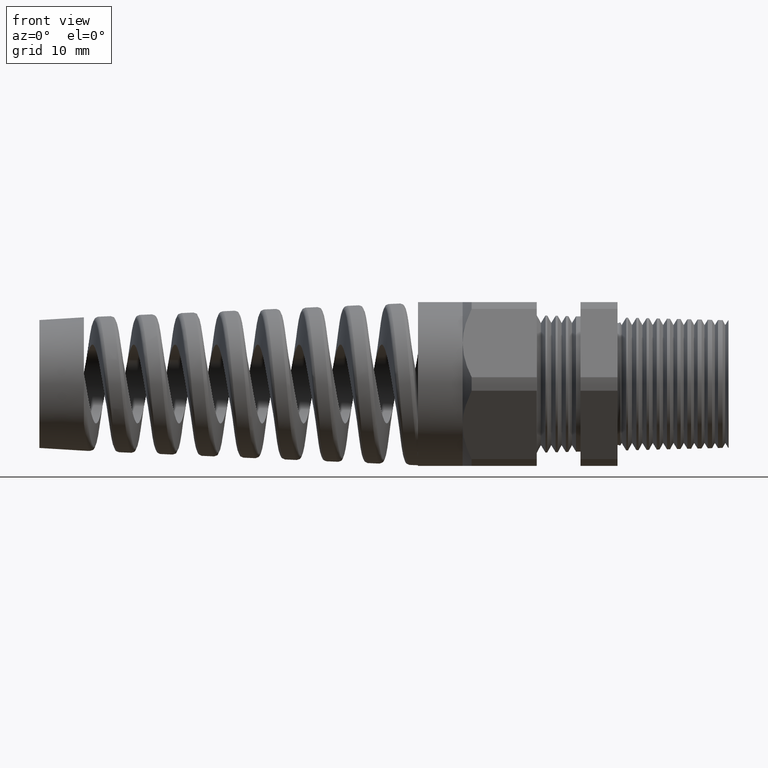
[diagram: clean part render]
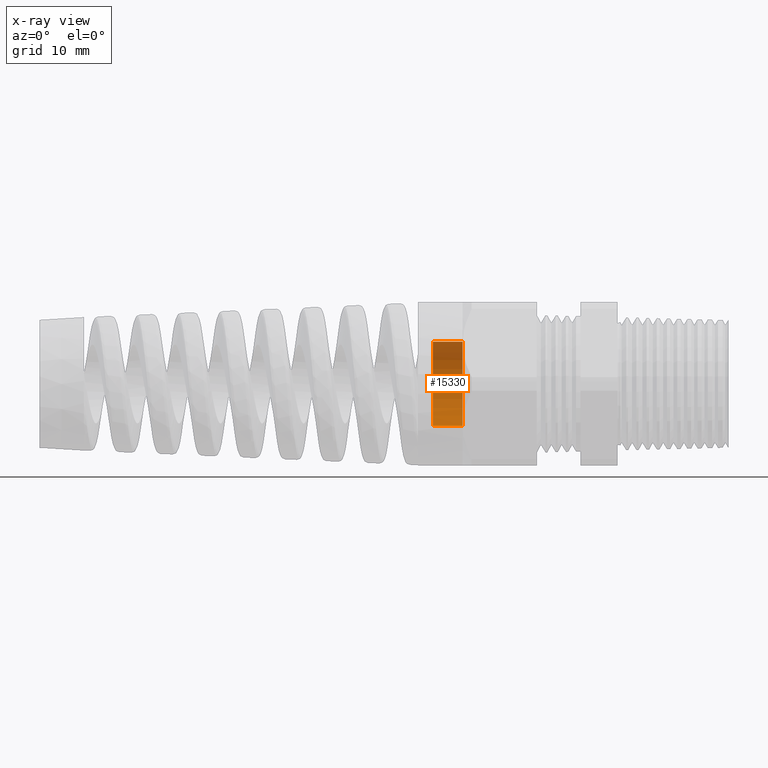
[diagram: x-ray — body ghosted, one internal face saturated and labeled with its STEP entity id]
A machine part, front view, then the same camera in x-ray: the body is ghosted and one INTERNAL B-rep face — a face not visible from any outside direction — is saturated and labeled: STEP entity #15330.
In plain terms, the highlighted cylindrical surface (partial cylindrical patch) has radius 5.69 mm, axis along (1, 0, 0).
Its self-contained STEP definition (entity closure, byte-faithful):
#2848 = CARTESIAN_POINT ( 'NONE',  ( -1.289999999999999800, 0.0000000000000000000, -0.2240167598134333900 ) ) ;
#2849 = DIRECTION ( 'NONE',  ( 1.000000000000000000, 0.0000000000000000000, 0.0000000000000000000 ) ) ;
#2850 = VECTOR ( 'NONE', #2849, 39.37007874015748100 ) ;
#2851 = CARTESIAN_POINT ( 'NONE',  ( -1.369721211586352600, 0.0000000000000000000, -0.2240167598134333900 ) ) ;
#2852 = LINE ( 'NONE', #2851, #2850 ) ;
#8094 = CARTESIAN_POINT ( 'NONE',  ( -1.132519685039370200, 2.743414078608826300E-017, 0.2240167598134333900 ) ) ;
#8095 = DIRECTION ( 'NONE',  ( 1.000000000000000000, 0.0000000000000000000, 0.0000000000000000000 ) ) ;
#8096 = VECTOR ( 'NONE', #8095, 39.37007874015748100 ) ;
#8097 = CARTESIAN_POINT ( 'NONE',  ( -1.369721211586352600, 2.743414078608826300E-017, 0.2240167598134333900 ) ) ;
#8098 = LINE ( 'NONE', #8097, #8096 ) ;
#8099 = CARTESIAN_POINT ( 'NONE',  ( -1.289999999999999800, 2.743414078608826300E-017, 0.2240167598134333900 ) ) ;
#8130 = CARTESIAN_POINT ( 'NONE',  ( -1.132519685039370200, 0.0000000000000000000, -0.2240167598134333900 ) ) ;
#8811 = DIRECTION ( 'NONE',  ( 0.0000000000000000000, 0.0000000000000000000, -1.000000000000000000 ) ) ;
#8812 = DIRECTION ( 'NONE',  ( -1.000000000000000000, 0.0000000000000000000, 0.0000000000000000000 ) ) ;
#8813 = AXIS2_PLACEMENT_3D ( 'NONE', #8819, #8812, #8811 ) ;
#8814 = CIRCLE ( 'NONE', #8813, 0.2240167598134333900 ) ;
#8815 = DIRECTION ( 'NONE',  ( 0.0000000000000000000, 0.0000000000000000000, -1.000000000000000000 ) ) ;
#8816 = DIRECTION ( 'NONE',  ( 1.000000000000000000, 0.0000000000000000000, 0.0000000000000000000 ) ) ;
#8817 = AXIS2_PLACEMENT_3D ( 'NONE', #8820, #8816, #8815 ) ;
#8818 = CYLINDRICAL_SURFACE ( 'NONE', #8817, 0.2240167598134333900 ) ;
#8819 = CARTESIAN_POINT ( 'NONE',  ( -1.289999999999999800, 0.0000000000000000000, 0.0000000000000000000 ) ) ;
#8820 = CARTESIAN_POINT ( 'NONE',  ( -1.369721211586352600, 0.0000000000000000000, 0.0000000000000000000 ) ) ;
#8821 = FACE_OUTER_BOUND ( 'NONE', #15332, .T. ) ;
#8942 = CIRCLE ( 'NONE', #8947, 0.2240167598134333900 ) ;
#8947 = AXIS2_PLACEMENT_3D ( 'NONE', #9004, #9003, #9002 ) ;
#9002 = DIRECTION ( 'NONE',  ( 0.0000000000000000000, 0.0000000000000000000, 1.000000000000000000 ) ) ;
#9003 = DIRECTION ( 'NONE',  ( 1.000000000000000000, 0.0000000000000000000, 0.0000000000000000000 ) ) ;
#9004 = CARTESIAN_POINT ( 'NONE',  ( -1.132519685039370200, 0.0000000000000000000, 0.0000000000000000000 ) ) ;
#10727 = EDGE_CURVE ( 'NONE', #10728, #10810, #2852, .T. ) ;
#10728 = VERTEX_POINT ( 'NONE', #2848 ) ;
#10773 = VERTEX_POINT ( 'NONE', #8099 ) ;
#10775 = EDGE_CURVE ( 'NONE', #10773, #10776, #8098, .T. ) ;
#10776 = VERTEX_POINT ( 'NONE', #8094 ) ;
#10810 = VERTEX_POINT ( 'NONE', #8130 ) ;
#15329 = ORIENTED_EDGE ( 'NONE', *, *, #10775, .F. ) ;
#15330 = ADVANCED_FACE ( 'NONE', ( #8821 ), #8818, .F. ) ;
#15332 = EDGE_LOOP ( 'NONE', ( #15329, #15333, #15335, #15395 ) ) ;
#15333 = ORIENTED_EDGE ( 'NONE', *, *, #15334, .T. ) ;
#15334 = EDGE_CURVE ( 'NONE', #10773, #10728, #8814, .T. ) ;
#15335 = ORIENTED_EDGE ( 'NONE', *, *, #10727, .T. ) ;
#15395 = ORIENTED_EDGE ( 'NONE', *, *, #15423, .T. ) ;
#15423 = EDGE_CURVE ( 'NONE', #10810, #10776, #8942, .T. ) ;